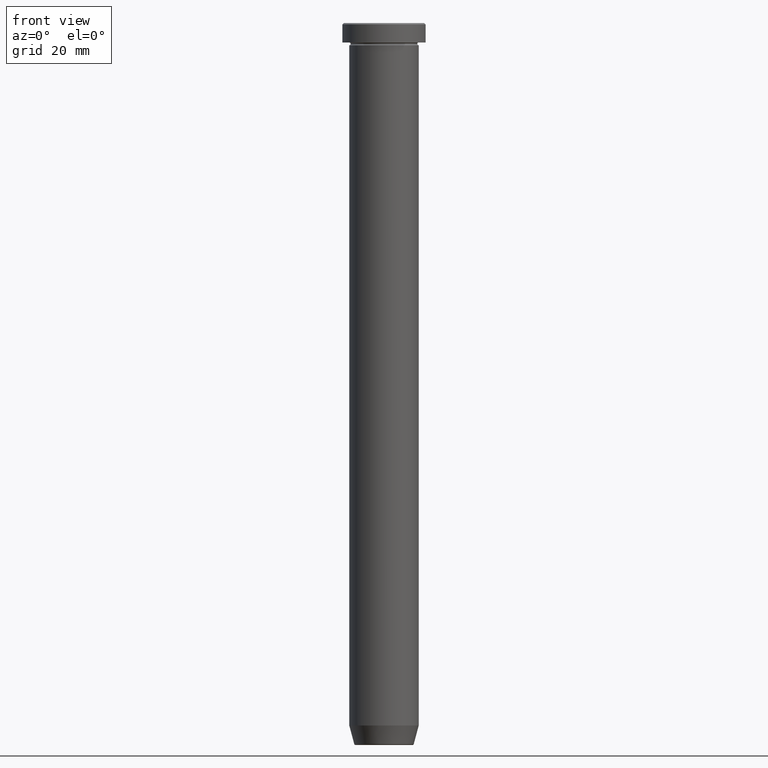
[diagram: clean part render]
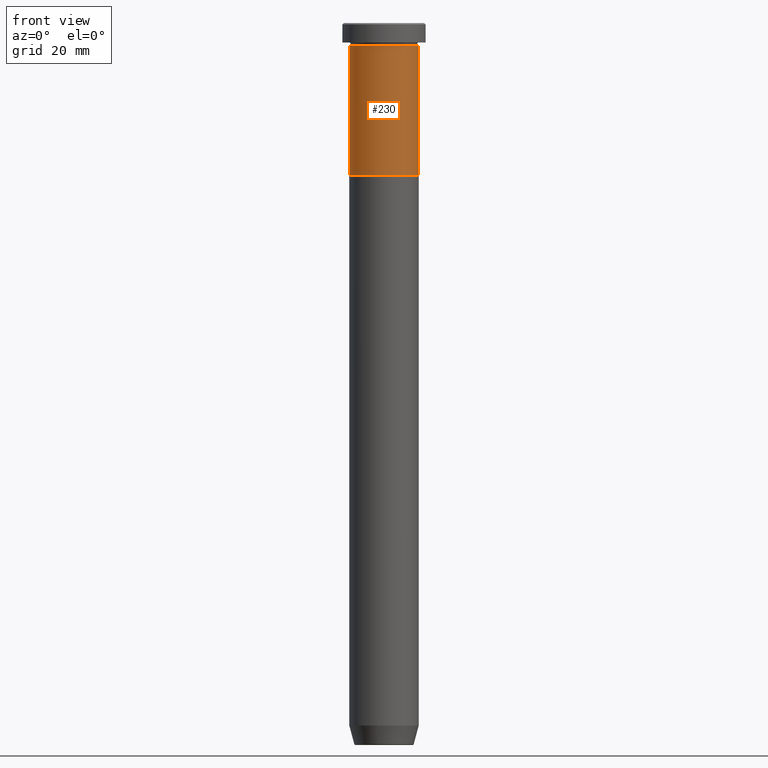
[diagram: same view with one face highlighted and labeled with its STEP entity id]
A machine part, front view. The second image highlights one B-rep face of the part: STEP entity #230.
In plain terms, the highlighted cylindrical surface (edge-blend (fillet) strip) has radius 12.5 mm, axis along (-0, -0, 1).
Its self-contained STEP definition (entity closure, byte-faithful):
#15 = VERTEX_POINT ( 'NONE', #564 ) ;
#24 = LINE ( 'NONE', #66, #190 ) ;
#55 = DIRECTION ( 'NONE',  ( -0.000000000000000000, -0.000000000000000000, 1.000000000000000000 ) ) ;
#66 = CARTESIAN_POINT ( 'NONE',  ( 12.50000000000000000, 0.000000000000000000, 0.000000000000000000 ) ) ;
#74 = AXIS2_PLACEMENT_3D ( 'NONE', #456, #126, #85 ) ;
#83 = EDGE_CURVE ( 'NONE', #442, #314, #86, .T. ) ;
#85 = DIRECTION ( 'NONE',  ( 1.000000000000000000, 0.000000000000000000, 0.000000000000000000 ) ) ;
#86 = CIRCLE ( 'NONE', #270, 12.50000000000000000 ) ;
#94 = EDGE_CURVE ( 'NONE', #314, #15, #24, .T. ) ;
#115 = CARTESIAN_POINT ( 'NONE',  ( -12.50000000000000000, 1.530808498934191521E-15, -54.99999999999999289 ) ) ;
#126 = DIRECTION ( 'NONE',  ( -0.000000000000000000, -0.000000000000000000, 1.000000000000000000 ) ) ;
#148 = FACE_OUTER_BOUND ( 'NONE', #347, .T. ) ;
#149 = DIRECTION ( 'NONE',  ( -0.000000000000000000, -0.000000000000000000, 1.000000000000000000 ) ) ;
#151 = LINE ( 'NONE', #297, #460 ) ;
#163 = CARTESIAN_POINT ( 'NONE',  ( 12.50000000000000000, 0.000000000000000000, -54.99999999999999289 ) ) ;
#179 = EDGE_CURVE ( 'NONE', #209, #15, #431, .T. ) ;
#190 = VECTOR ( 'NONE', #55, 1000.000000000000000 ) ;
#204 = ORIENTED_EDGE ( 'NONE', *, *, #179, .F. ) ;
#209 = VERTEX_POINT ( 'NONE', #481 ) ;
#230 = ADVANCED_FACE ( 'NONE', ( #148 ), #283, .T. ) ;
#235 = AXIS2_PLACEMENT_3D ( 'NONE', #518, #379, #477 ) ;
#249 = DIRECTION ( 'NONE',  ( 1.000000000000000000, 0.000000000000000000, 0.000000000000000000 ) ) ;
#266 = ORIENTED_EDGE ( 'NONE', *, *, #83, .T. ) ;
#270 = AXIS2_PLACEMENT_3D ( 'NONE', #445, #149, #249 ) ;
#283 = CYLINDRICAL_SURFACE ( 'NONE', #235, 12.50000000000000000 ) ;
#297 = CARTESIAN_POINT ( 'NONE',  ( -12.50000000000000000, 1.530808498934191521E-15, 0.000000000000000000 ) ) ;
#314 = VERTEX_POINT ( 'NONE', #163 ) ;
#347 = EDGE_LOOP ( 'NONE', ( #514, #266, #589, #204 ) ) ;
#379 = DIRECTION ( 'NONE',  ( -0.000000000000000000, -0.000000000000000000, 1.000000000000000000 ) ) ;
#431 = CIRCLE ( 'NONE', #74, 12.50000000000000000 ) ;
#442 = VERTEX_POINT ( 'NONE', #115 ) ;
#445 = CARTESIAN_POINT ( 'NONE',  ( 0.000000000000000000, 0.000000000000000000, -54.99999999999999289 ) ) ;
#456 = CARTESIAN_POINT ( 'NONE',  ( 0.000000000000000000, 0.000000000000000000, -8.000000000000000000 ) ) ;
#460 = VECTOR ( 'NONE', #494, 1000.000000000000000 ) ;
#477 = DIRECTION ( 'NONE',  ( 1.000000000000000000, 0.000000000000000000, 0.000000000000000000 ) ) ;
#481 = CARTESIAN_POINT ( 'NONE',  ( -12.50000000000000000, 1.530808498934191521E-15, -8.000000000000000000 ) ) ;
#494 = DIRECTION ( 'NONE',  ( -0.000000000000000000, -0.000000000000000000, 1.000000000000000000 ) ) ;
#504 = EDGE_CURVE ( 'NONE', #442, #209, #151, .T. ) ;
#514 = ORIENTED_EDGE ( 'NONE', *, *, #504, .F. ) ;
#518 = CARTESIAN_POINT ( 'NONE',  ( 0.000000000000000000, 0.000000000000000000, 0.000000000000000000 ) ) ;
#564 = CARTESIAN_POINT ( 'NONE',  ( 12.50000000000000000, 0.000000000000000000, -8.000000000000000000 ) ) ;
#589 = ORIENTED_EDGE ( 'NONE', *, *, #94, .T. ) ;